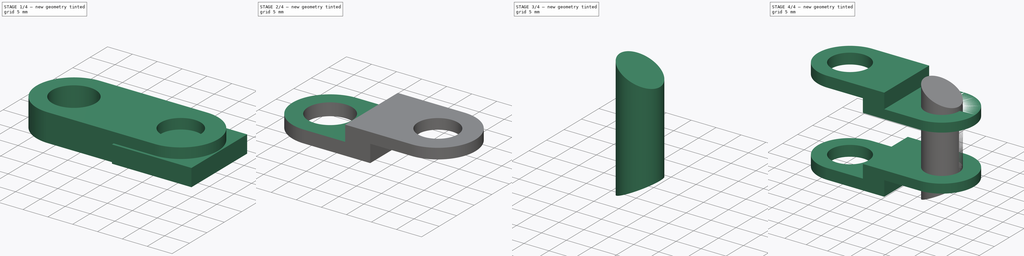
[diagram: build sequence overview — one tinted view per stage of 4, left to right]
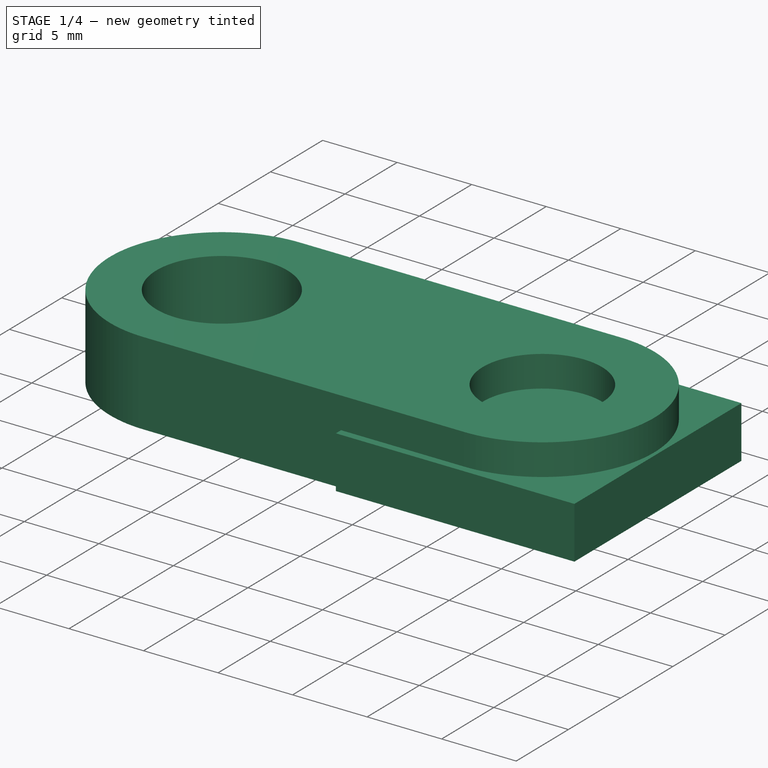
[diagram: stage 1 of 4 — iso view after this stage's code; geometry added in this stage tinted green]
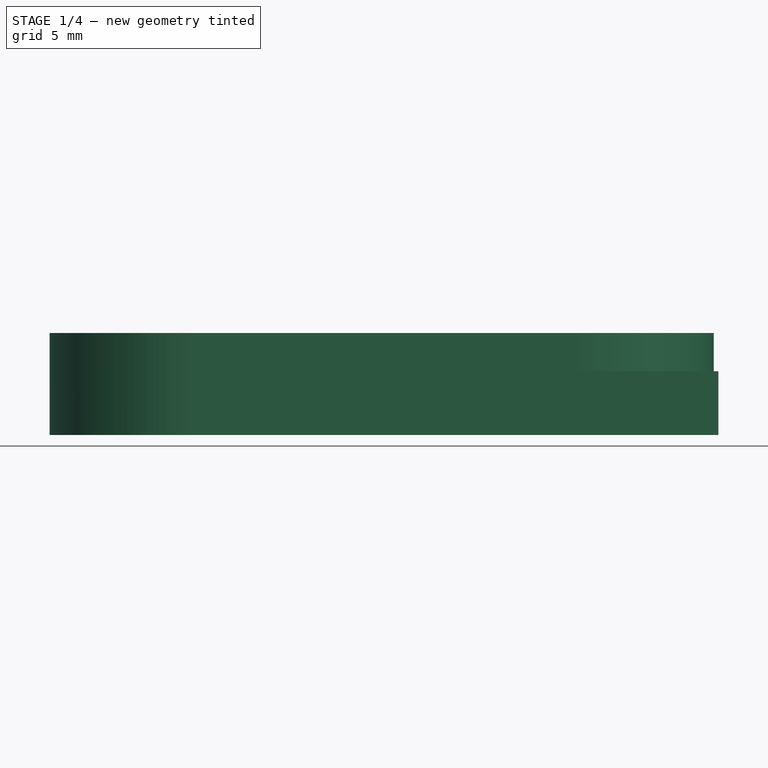
[diagram: stage 1 of 4 — front view after this stage's code; geometry added in this stage tinted green]
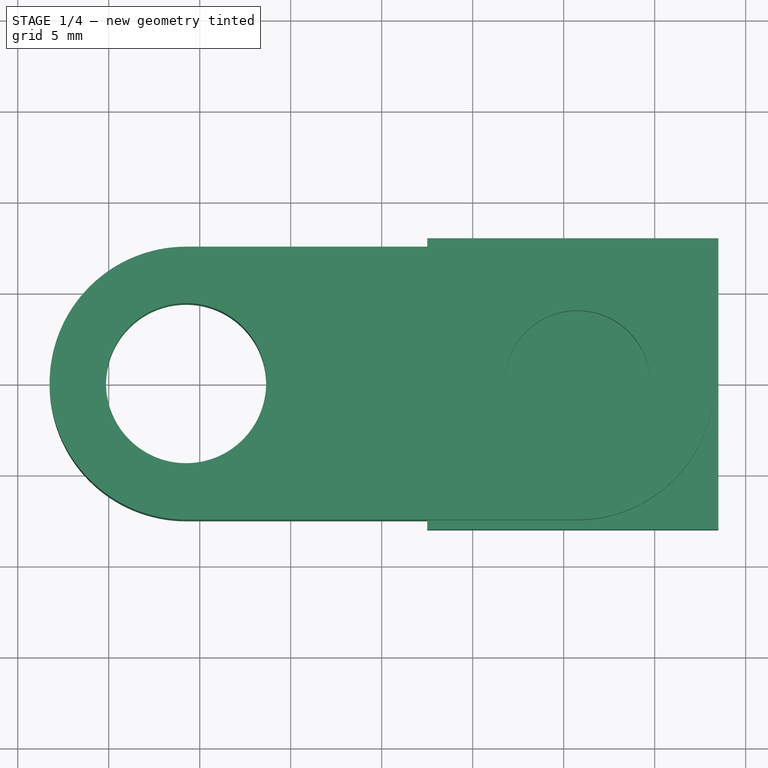
[diagram: stage 1 of 4 — top view after this stage's code; geometry added in this stage tinted green]
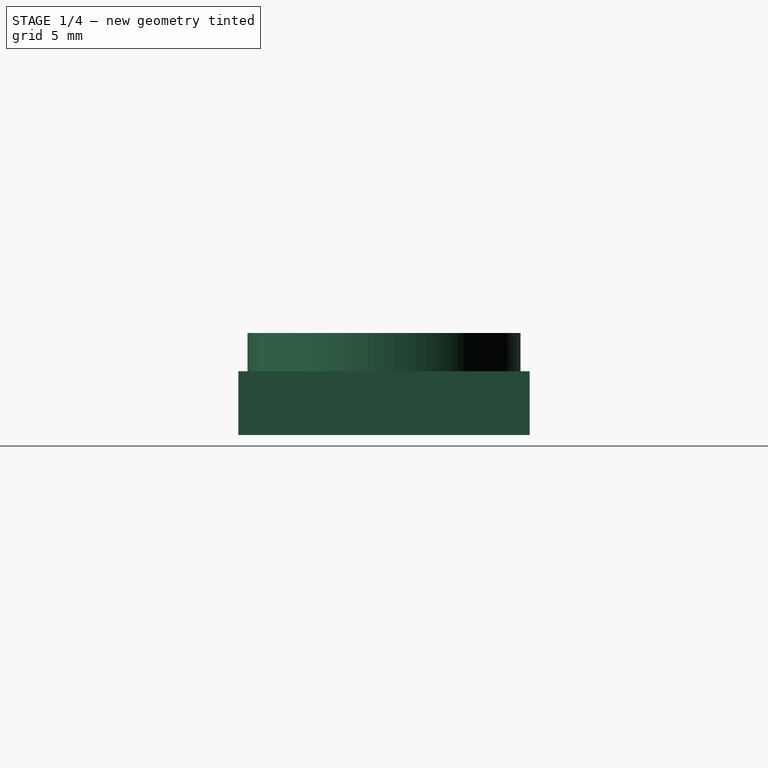
[diagram: stage 1 of 4 — right view after this stage's code; geometry added in this stage tinted green]
FCSTD DOCUMENT  (FreeCAD 0.21R33771 (Git))
Label: chain link
License: Public Domain
LicenseURL: https://en.wikipedia.org/wiki/Public_domain
objects: Part::Cut×3, Sketcher::SketchObject×2, Part::Extrusion×2, Part::Box×2, Part::MultiFuse×2, Part::Cylinder×1, PartDesign::CoordinateSystem×1, App::Link×1, App::FeaturePython×1, PartDesign::Line×1, App::Part×1
note: 14 computed .brp shape members not serialized (recipe doc carries the construction recipe); baked Part::Feature solids carry a one-line shape summary decoded from their .brp

FEATURE [Sketcher::SketchObject] Sketch
  FullyConstrained = true
  expr: Constraints[13] = .Constraints.PinRadius + 0.4 mm
  expr: Constraints[2] = 0 mm - .Constraints.LinkSpacing
  sketch-geometry (6):
    g0: Circle CenterX=-10.75 CenterY=0 CenterZ=0 NormalX=0 NormalY=0 NormalZ=1 AngleXU=0 Radius=4.4
    g1: Circle CenterX=10.75 CenterY=0 CenterZ=0 NormalX=0 NormalY=0 NormalZ=1 AngleXU=0 Radius=4
    g2: ArcOfCircle CenterX=-10.75 CenterY=0 CenterZ=0 NormalX=0 NormalY=0 NormalZ=1 AngleXU=0 Radius=7.5 StartAngle=1.5708 EndAngle=4.71239
    g3: ArcOfCircle CenterX=10.75 CenterY=0 CenterZ=0 NormalX=0 NormalY=0 NormalZ=1 AngleXU=0 Radius=7.5 StartAngle=4.71239 EndAngle=7.85398
    g4: LineSegment StartX=-10.75 StartY=-7.5 StartZ=0 EndX=10.75 EndY=-7.5 EndZ=0
    g5: LineSegment StartX=10.75 StartY=7.5 StartZ=0 EndX=-10.75 EndY=7.5 EndZ=0
  constraints (14):
    c: PointOnObject(g0,g-1)
    c: PointOnObject(g1,g-1)
    c: DistanceX(g0) = -10.75
    c: DistanceX(g1) = 10.75  'LinkSpacing'
    c: Tangent(g2,g4) = -1.5708
    c: Tangent(g4,g3) = -1.5708
    c: Tangent(g3,g5) = -1.5708
    c: Tangent(g5,g2) = -1.5708
    c: Equal(g2,g3)
    c: Coincident(g2,g0)
    c: Coincident(g3,g1)
    c: DistanceY(g3,g3) = 15
    c: Radius(g1) = 4  'PinRadius'
    c: Radius(g0) = 4.4
FEATURE [Part::Extrusion] Extrude  label="Side Plate"
  Base = -> Sketch
  Dir = (0,0,1)
  DirMode = 2
  FaceMakerClass = Part::FaceMakerBullseye
  LengthFwd = 5.6
  LengthRev = 0
  Solid = true
  Symmetric = false
FEATURE [PartDesign::CoordinateSystem] LCS_Origin  label="Sprocket AP"
  AttacherType = Attacher::AttachEngine3D
  AttachmentOffset = pos=(0,0,-12.5) rot=(0,0,1;0rad)
  MapMode = 11
  Placement = pos=(10.75,0,11) rot=(0,0,1;1.5708rad)
  Support = -> [Cylinder]
  expr: .AttachmentOffset.Base.z = 0 mm - <<Roller>>.Height / 2
FEATURE [Part::Box] Box  label="Cutter 1"
  AttacherType = Attacher::AttachEngine3D
  Height = 3.5
  Length = 16
  Placement = pos=(2.5,-8,0) rot=(0,0,1;0rad)
  Width = 16
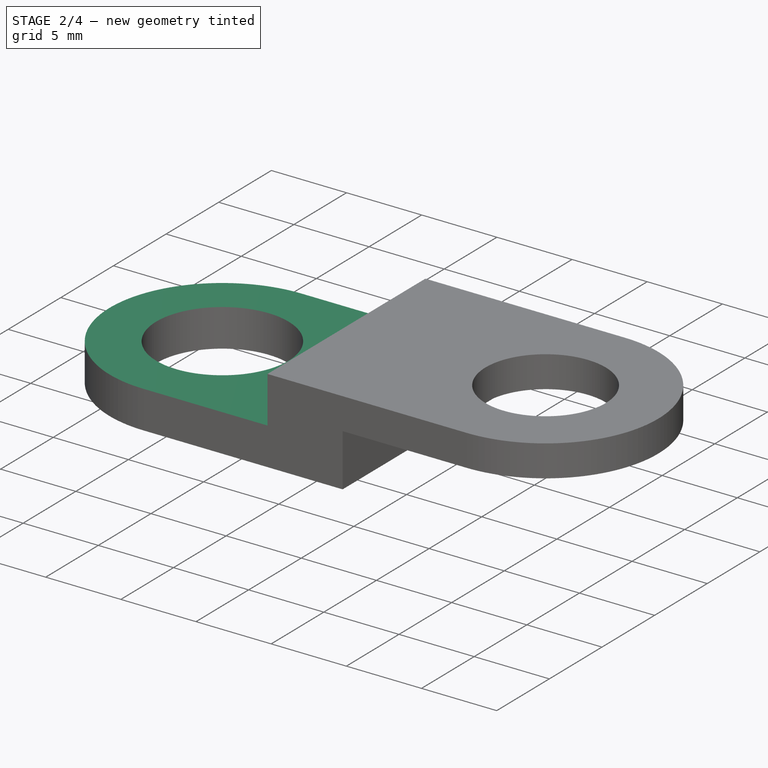
[diagram: stage 2 of 4 — iso view after this stage's code; geometry added in this stage tinted green]
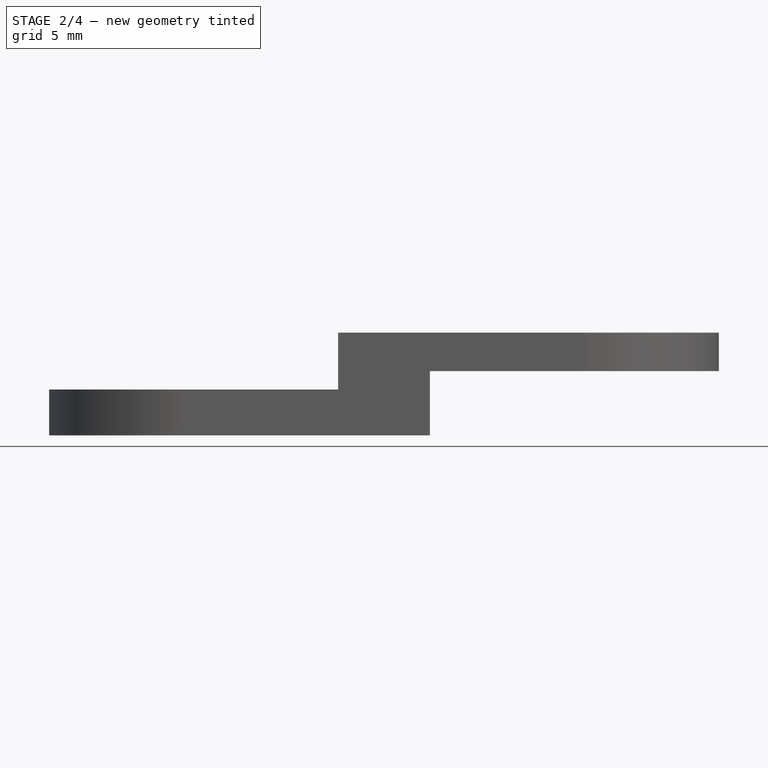
[diagram: stage 2 of 4 — front view after this stage's code; geometry added in this stage tinted green]
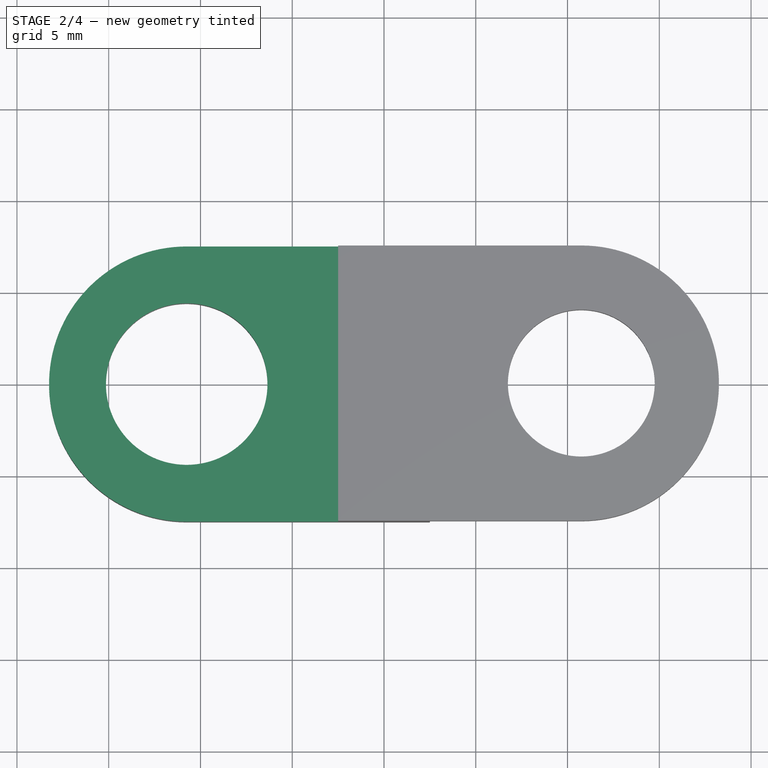
[diagram: stage 2 of 4 — top view after this stage's code; geometry added in this stage tinted green]
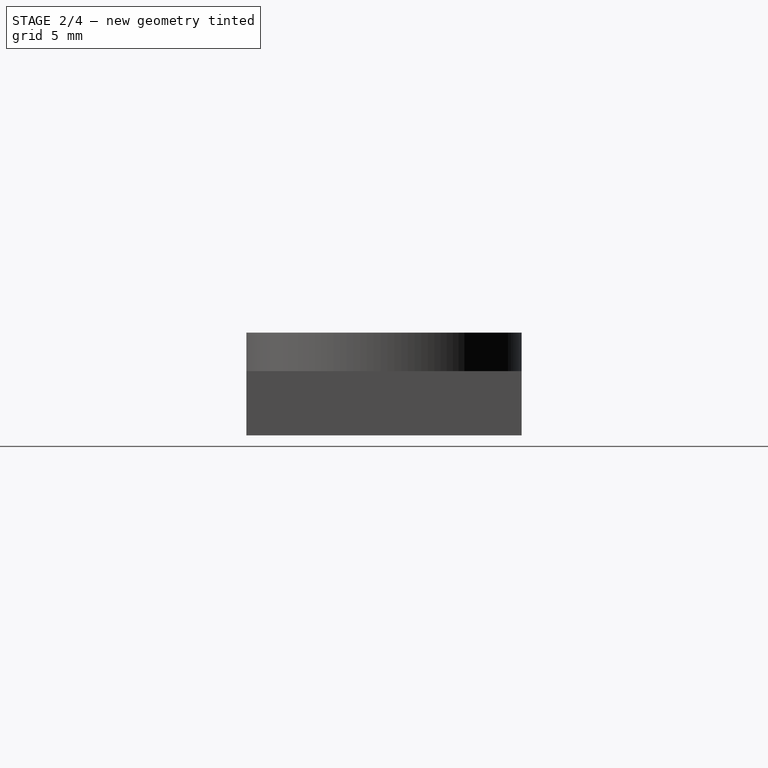
[diagram: stage 2 of 4 — right view after this stage's code; geometry added in this stage tinted green]
FEATURE [Part::Box] Box001  label="Cutter 2"
  AttacherType = Attacher::AttachEngine3D
  Height = 3.5
  Length = 16
  Placement = pos=(-18.5,-8,2.5) rot=(0,0,1;0rad)
  Width = 16
FEATURE [Part::Cut] Cut
  Base = -> Extrude
  Tool = -> Box
FEATURE [Part::Cut] Cut001  label="Bottom Plate"
  Base = -> Cut
  Tool = -> Box001
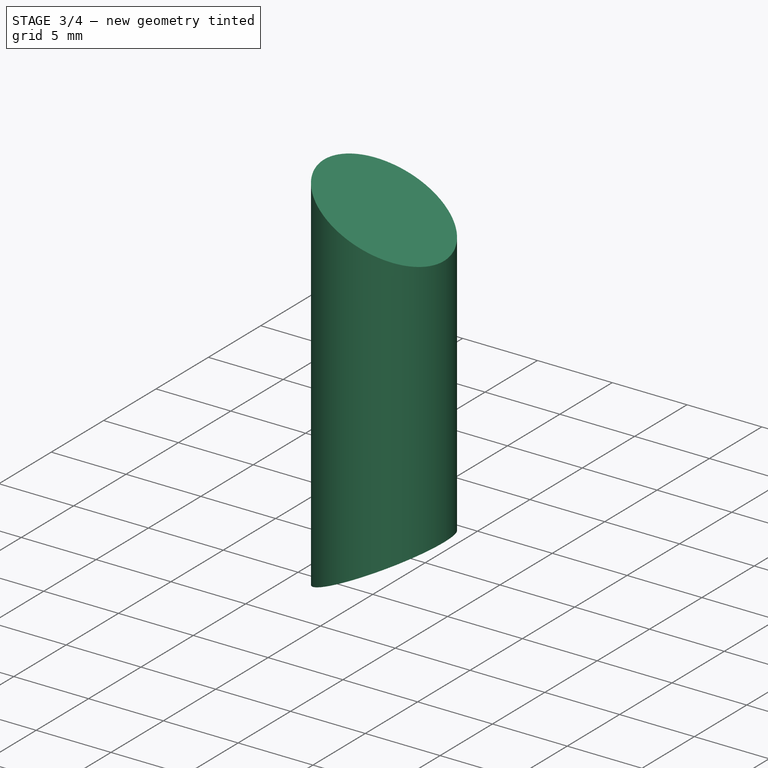
[diagram: stage 3 of 4 — iso view after this stage's code; geometry added in this stage tinted green]
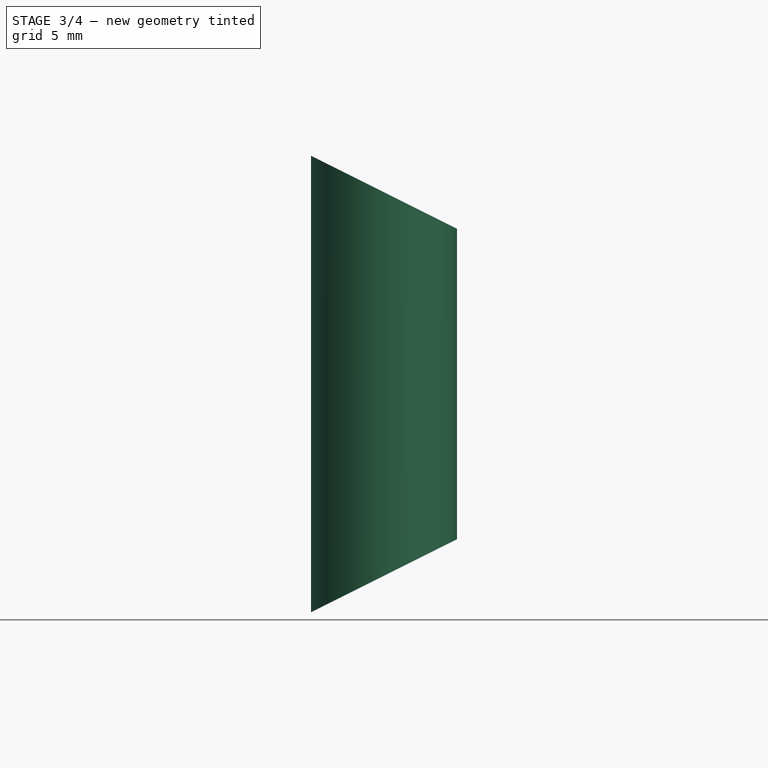
[diagram: stage 3 of 4 — front view after this stage's code; geometry added in this stage tinted green]
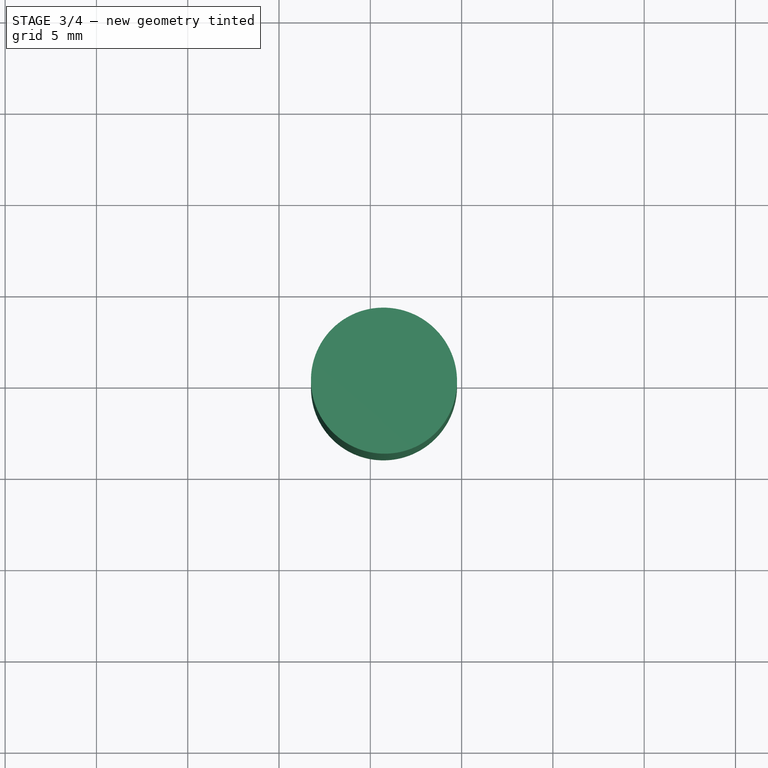
[diagram: stage 3 of 4 — top view after this stage's code; geometry added in this stage tinted green]
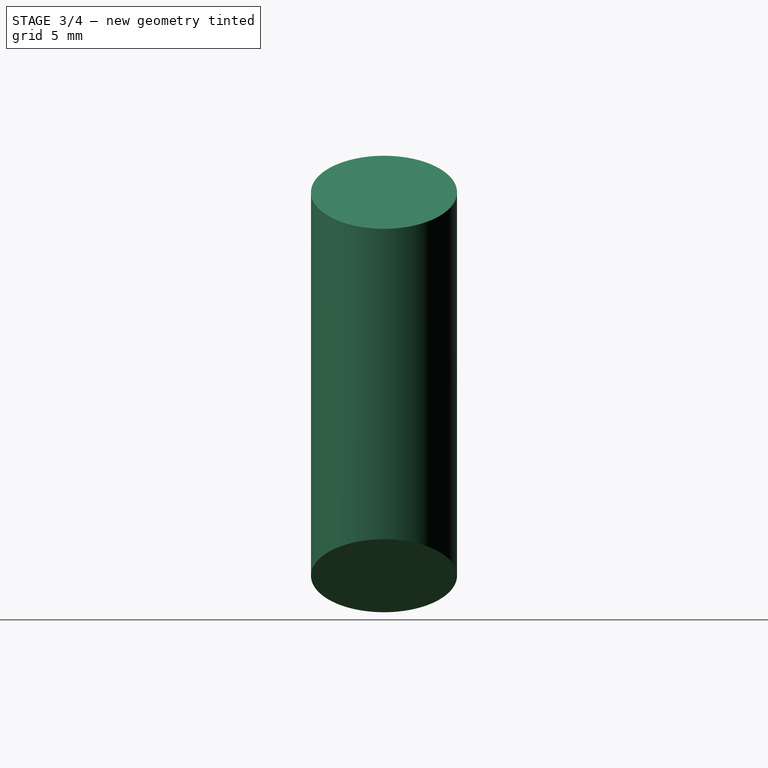
[diagram: stage 3 of 4 — right view after this stage's code; geometry added in this stage tinted green]
FEATURE [Part::Cylinder] Cylinder  label="Roller"
  Angle = 360
  AttacherType = Attacher::AttachEngine3D
  FirstAngle = 0
  Height = 25
  Placement = pos=(10.75,0,-1.5) rot=(0,0,1;0rad)
  Radius = 4
  SecondAngle = 0
  expr: .Placement.Base.x = Sketch.Constraints.LinkSpacing
  expr: Height = Variables.PinLen
  expr: Radius = Variables.PinRadius
FEATURE [App::Link] Link  label="Top Plate"
  LinkPlacement = pos=(0,-3.02793e-06,22) rot=(1,0,0;3.14159rad)
  LinkedObject = -> Cut001
  Placement = pos=(0,-3.02793e-06,22) rot=(1,0,0;3.14159rad)
  expr: .Placement.Base.z = Variables.PlateSpacing
FEATURE [Sketcher::SketchObject] Sketch001  label="Pin cutter sketch"
  ExternalGeometry = -> [Cylinder,Cut001]
  FullyConstrained = true
  Placement = pos=(0,0,0) rot=(1,0,0;1.5708rad)
  expr: Constraints[21] = Variables.PinRadius * 4
  sketch-geometry (8):
    g0: LineSegment StartX=14.75 StartY=2.5 StartZ=0 EndX=1.95 EndY=-3.9 EndZ=0
    g1: LineSegment StartX=1.95 StartY=-3.9 StartZ=0 EndX=17.95 EndY=-3.9 EndZ=0
    g2: LineSegment StartX=17.95 StartY=-3.9 StartZ=0 EndX=14.75 EndY=2.5 EndZ=0
    g3: LineSegment StartX=1.95 StartY=25.9 StartZ=0 EndX=17.95 EndY=25.9 EndZ=0
    g4: LineSegment StartX=17.95 StartY=25.9 StartZ=0 EndX=14.75 EndY=19.5 EndZ=0
    g5: LineSegment StartX=14.75 StartY=19.5 StartZ=0 EndX=1.95 EndY=25.9 EndZ=0
    g6: LineSegment StartX=14.75 StartY=2.5 StartZ=0 EndX=14.75 EndY=-1.5 EndZ=0
    g7: LineSegment StartX=14.75 StartY=23.5 StartZ=0 EndX=14.75 EndY=19.5 EndZ=0
  constraints (22):
    c: PointOnObject(g-3,g0)
    c: Coincident(g1,g0)
    c: Horizontal(g1)
    c: Coincident(g2,g0)
    c: Coincident(g3,g5)
    c: Coincident(g4,g5)
    c: Coincident(g1,g2)
    c: Coincident(g3,g4)
    c: PointOnObject(g4,g-5)
    c: PointOnObject(g-6,g5)
    c: Coincident(g6,g0)
    c: Coincident(g6,g-5)
    c: Coincident(g7,g-6)
    c: Coincident(g7,g4)
    c: Equal(g7,g6)
    c: Equal(g3,g1)
    c: Equal(g2,g4)
    c: Perpendicular(g0,g2)
    c: Perpendicular(g5,g4)
    c: PointOnObject(g0,g-5)
    c: DistanceY(g0,g-4) = 1
    c: DistanceX(g1,g1) = 16
FEATURE [Part::Extrusion] Extrude001  label="Pin Cutter"
  Base = -> Sketch001
  Dir = (0,-1,2e-16)
  DirMode = 2
  FaceMakerClass = Part::FaceMakerBullseye
  LengthFwd = 20
  LengthRev = 0
  Solid = true
  Symmetric = true
FEATURE [App::FeaturePython] Variables  # WARN: FeaturePython — macro-defined, semantics opaque (R4)
  PinLen = 25
  PinRadius = 4
  PlateSpacing = 22
  Type = App::PropertyContainer
FEATURE [Part::Cut] Cut002
  Base = -> Cylinder
  Tool = -> Extrude001
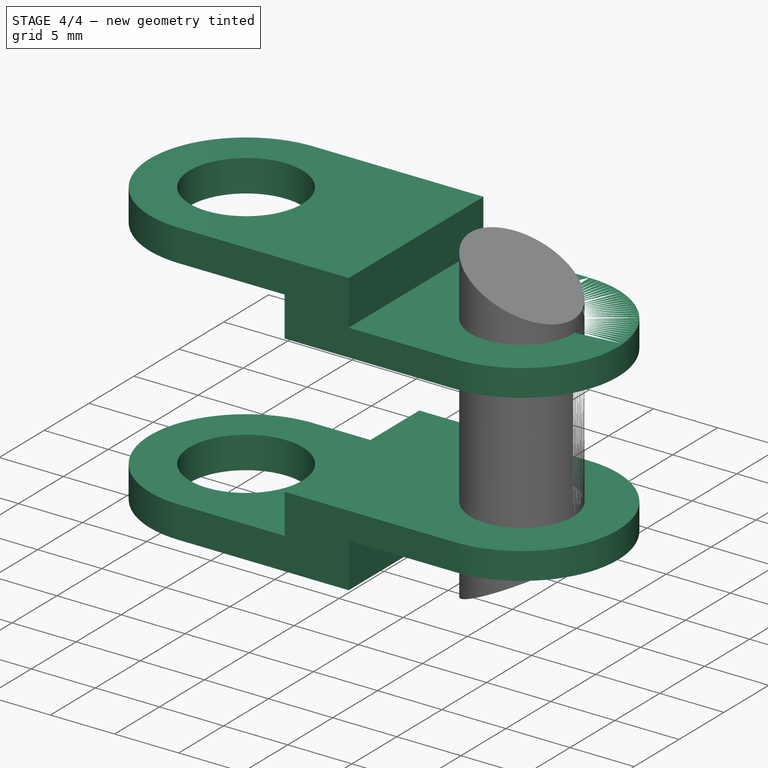
[diagram: stage 4 of 4 — iso view after this stage's code; geometry added in this stage tinted green]
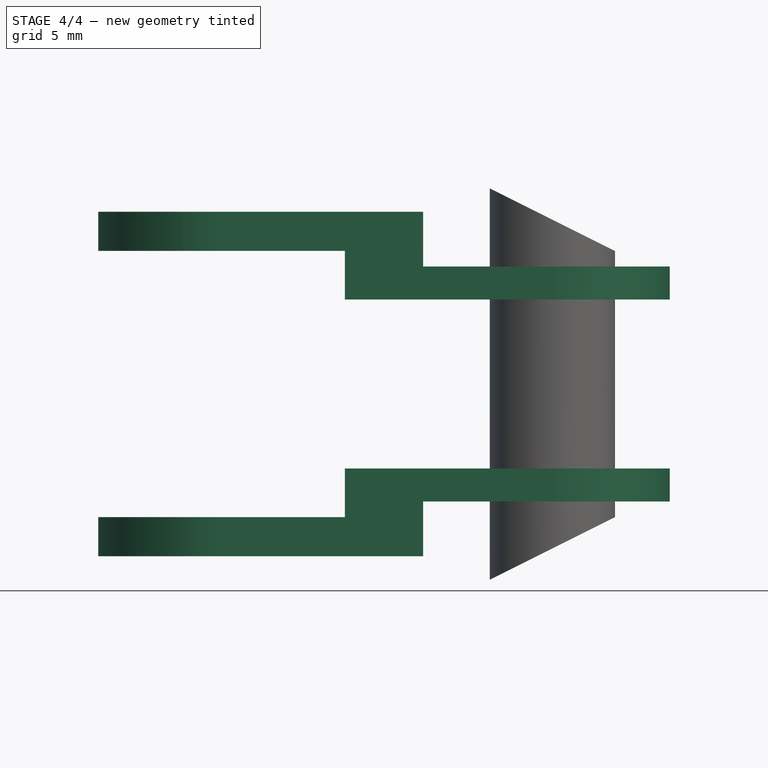
[diagram: stage 4 of 4 — front view after this stage's code; geometry added in this stage tinted green]
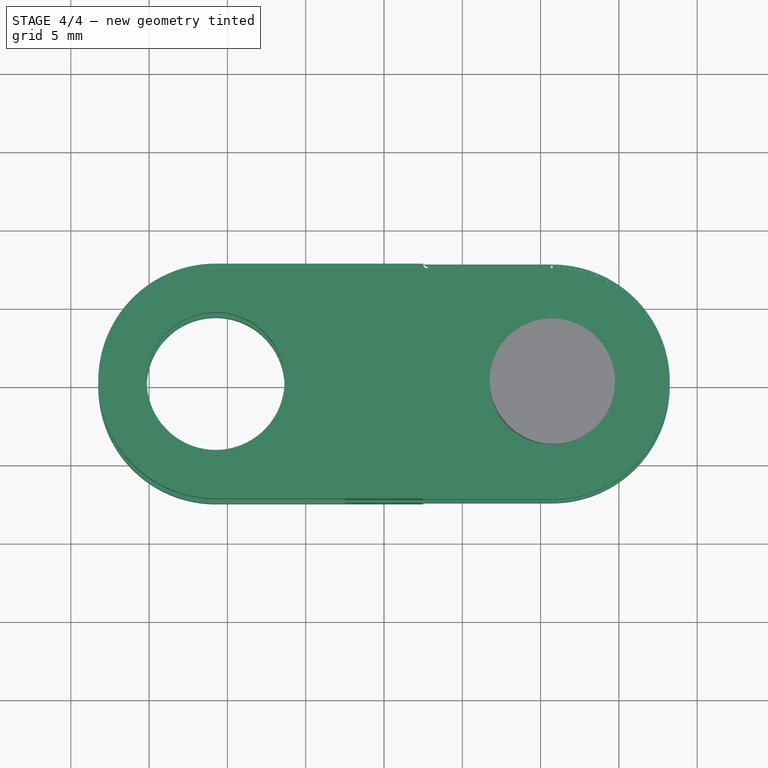
[diagram: stage 4 of 4 — top view after this stage's code; geometry added in this stage tinted green]
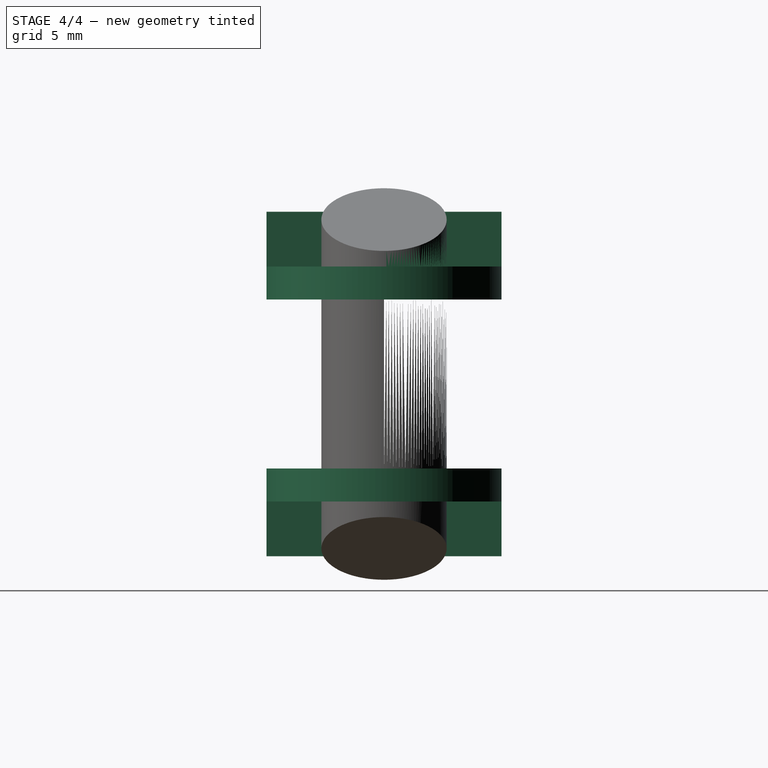
[diagram: stage 4 of 4 — right view after this stage's code; geometry added in this stage tinted green]
FEATURE [Part::MultiFuse] Fusion
  Shapes = -> [Link,Cut002]
FEATURE [Part::MultiFuse] Fusion001
  Shapes = -> [Fusion,Cut001]
FEATURE [PartDesign::Line] HoleAxis_1  label="Roller AP"
  AttacherType = Attacher::AttachEngineLine
  AttachmentOffset = pos=(0,0,11) rot=(0,0,1;0rad)
  Length = 14.0907
  MapMode = 19
  Placement = pos=(-10.75,-2.06628e-06,11) rot=(-1,0,0;3.14159rad)
  ResizeMode = 1
  Support = -> [Fusion001]
  expr: .AttachmentOffset.Base.z = 0.5 * <<Top Plate>>.Placement.Base.z - <<Bottom Plate>>.Placement.Base.z
FEATURE [App::Part] Chain_Link  label="Chain Link"
  Group = -> [HoleAxis_1,Variables,LCS_Origin,Sketch,Extrude,Cylinder,Box,Box001,Cut,Cut001,Link,Sketch001,Extrude001,Cut002,Fusion,Fusion001]
  Origin = -> Origin
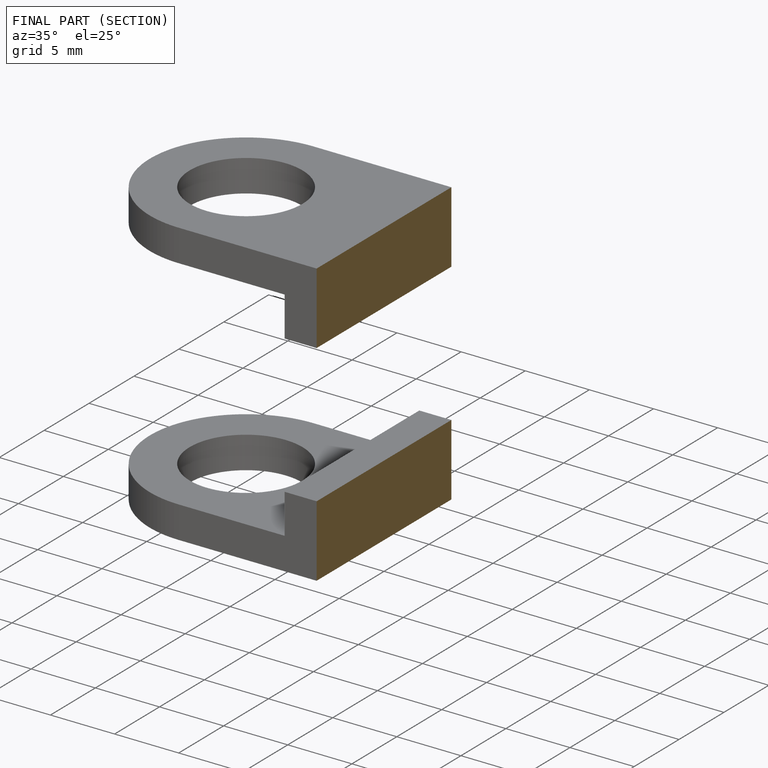
[diagram: finished part — half-section view (interior)]
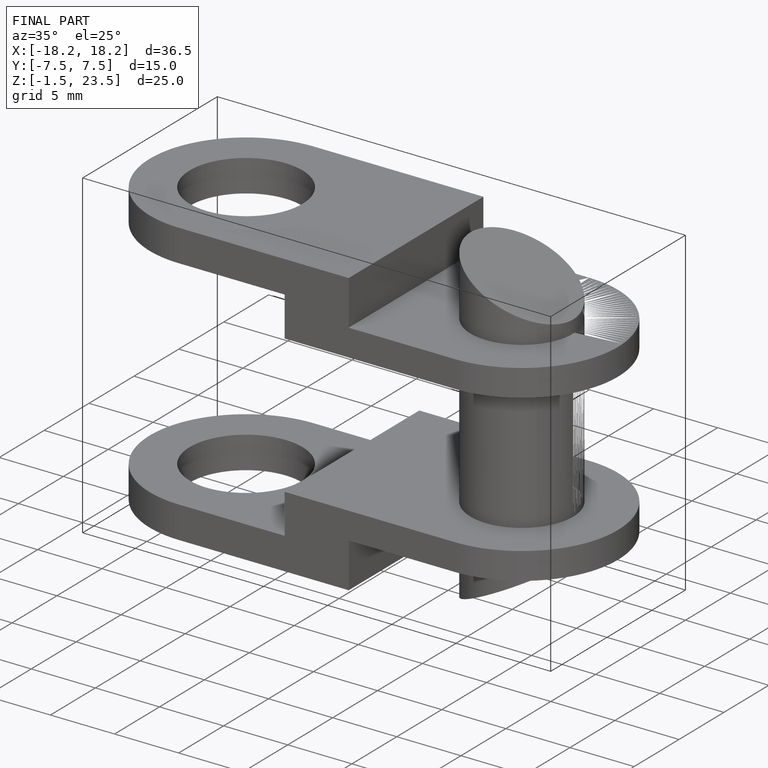
[diagram: finished part — iso view with bounding-box wireframe]
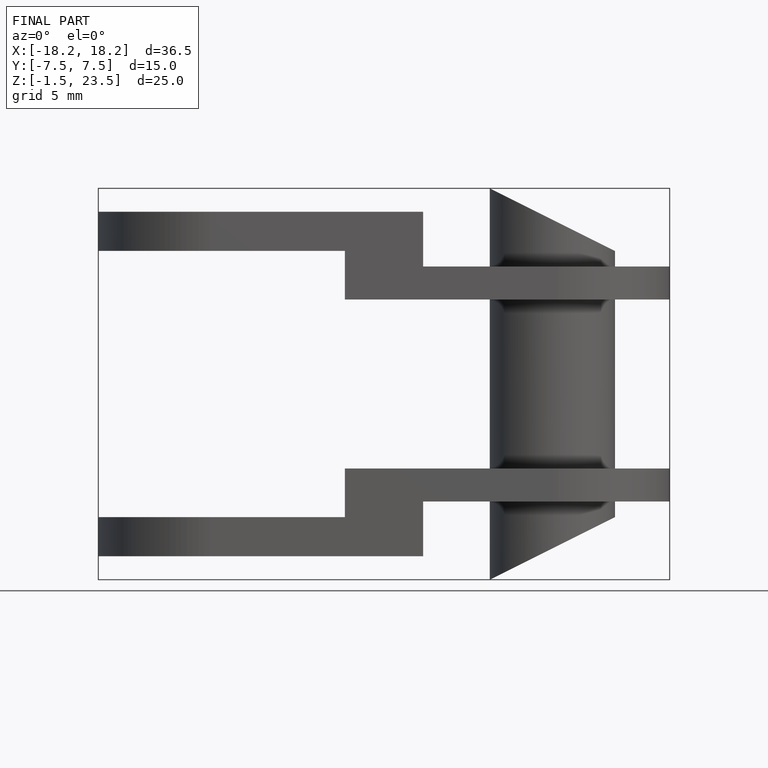
[diagram: finished part — front view with bounding-box wireframe]
